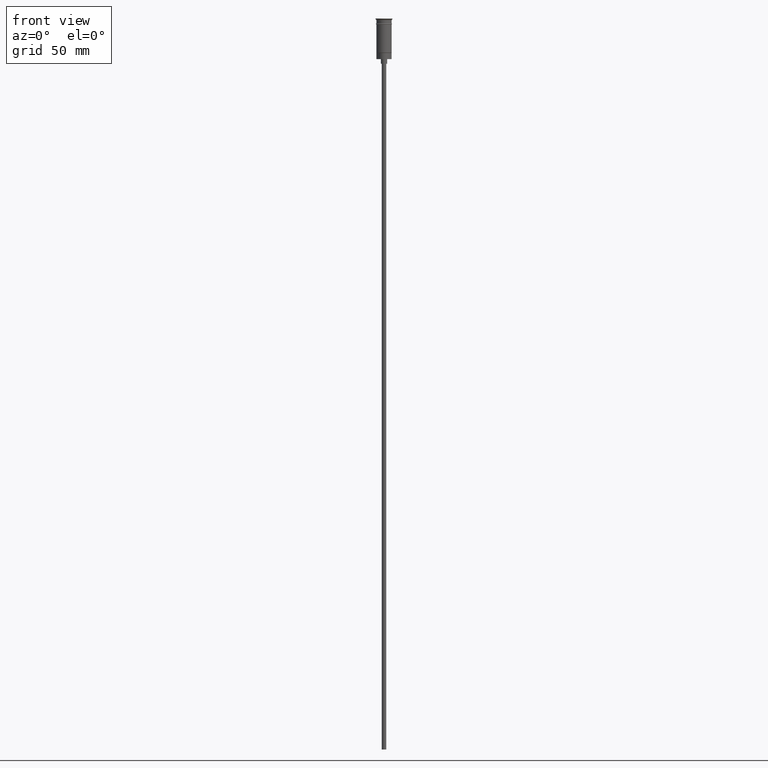
[diagram: clean part render]
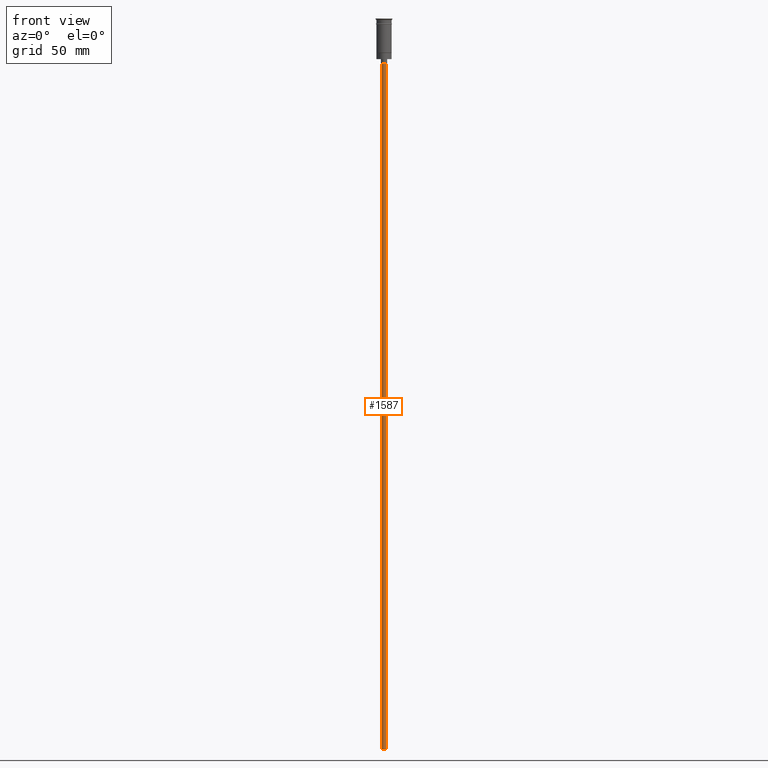
[diagram: same view with one face highlighted and labeled with its STEP entity id]
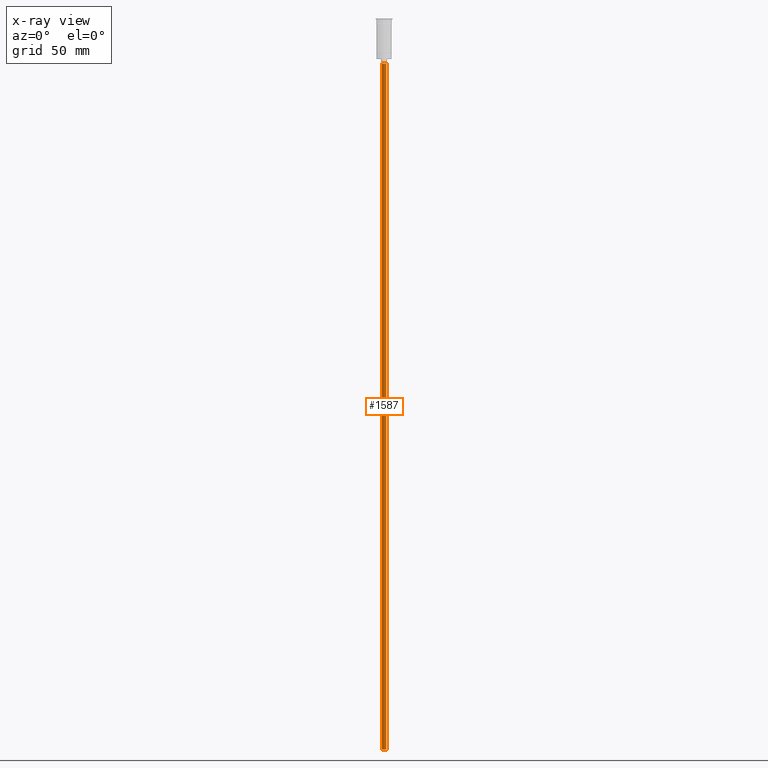
[diagram: x-ray of the same camera — body ghosted, the highlighted face saturated]
A machine part, front view. The second image highlights one B-rep face of the part: STEP entity #1587.
The next image is the same camera in x-ray: the body ghosted, the highlighted face saturated — about 0% of this face is hidden behind the body in this view.
In plain terms, the highlighted cylindrical surface (edge-blend (fillet) strip) has radius 1.5 mm, axis along (-0, -0, 1).
Its self-contained STEP definition (entity closure, byte-faithful):
#46 = CARTESIAN_POINT ( 'NONE',  ( -1.500000000000000222, 1.836970198721030181E-16, -476.5000000000000568 ) ) ;
#80 = CARTESIAN_POINT ( 'NONE',  ( 0.000000000000000000, 0.000000000000000000, -29.50000000000000000 ) ) ;
#89 = DIRECTION ( 'NONE',  ( -1.000000000000000000, 0.000000000000000000, 0.000000000000000000 ) ) ;
#95 = AXIS2_PLACEMENT_3D ( 'NONE', #80, #220, #89 ) ;
#115 = DIRECTION ( 'NONE',  ( -0.000000000000000000, -0.000000000000000000, 1.000000000000000000 ) ) ;
#123 = CARTESIAN_POINT ( 'NONE',  ( 0.000000000000000000, 0.000000000000000000, -476.5000000000000568 ) ) ;
#169 = VECTOR ( 'NONE', #667, 1000.000000000000000 ) ;
#198 = DIRECTION ( 'NONE',  ( -0.000000000000000000, -0.000000000000000000, 1.000000000000000000 ) ) ;
#220 = DIRECTION ( 'NONE',  ( 0.000000000000000000, 0.000000000000000000, -1.000000000000000000 ) ) ;
#358 = VERTEX_POINT ( 'NONE', #664 ) ;
#381 = CARTESIAN_POINT ( 'NONE',  ( 1.500000000000000222, 0.000000000000000000, -476.5000000000000568 ) ) ;
#425 = AXIS2_PLACEMENT_3D ( 'NONE', #123, #115, #756 ) ;
#432 = CARTESIAN_POINT ( 'NONE',  ( 1.500000000000000222, 0.000000000000000000, -476.5000000000000568 ) ) ;
#466 = VERTEX_POINT ( 'NONE', #46 ) ;
#503 = FACE_OUTER_BOUND ( 'NONE', #1079, .T. ) ;
#641 = CARTESIAN_POINT ( 'NONE',  ( 0.000000000000000000, 0.000000000000000000, -476.5000000000000568 ) ) ;
#652 = ORIENTED_EDGE ( 'NONE', *, *, #1370, .T. ) ;
#664 = CARTESIAN_POINT ( 'NONE',  ( -1.500000000000000222, 1.836970198721030181E-16, -29.50000000000000000 ) ) ;
#667 = DIRECTION ( 'NONE',  ( -0.000000000000000000, -0.000000000000000000, 1.000000000000000000 ) ) ;
#696 = VERTEX_POINT ( 'NONE', #740 ) ;
#712 = VERTEX_POINT ( 'NONE', #381 ) ;
#740 = CARTESIAN_POINT ( 'NONE',  ( 1.500000000000000222, 0.000000000000000000, -29.50000000000000000 ) ) ;
#749 = ORIENTED_EDGE ( 'NONE', *, *, #880, .T. ) ;
#756 = DIRECTION ( 'NONE',  ( 1.000000000000000000, 0.000000000000000000, 0.000000000000000000 ) ) ;
#811 = DIRECTION ( 'NONE',  ( -1.000000000000000000, 0.000000000000000000, 0.000000000000000000 ) ) ;
#880 = EDGE_CURVE ( 'NONE', #712, #696, #1537, .T. ) ;
#912 = ORIENTED_EDGE ( 'NONE', *, *, #1251, .F. ) ;
#1042 = VECTOR ( 'NONE', #198, 1000.000000000000000 ) ;
#1079 = EDGE_LOOP ( 'NONE', ( #1263, #912, #749, #652 ) ) ;
#1093 = AXIS2_PLACEMENT_3D ( 'NONE', #641, #1385, #811 ) ;
#1251 = EDGE_CURVE ( 'NONE', #712, #466, #1556, .T. ) ;
#1263 = ORIENTED_EDGE ( 'NONE', *, *, #1336, .F. ) ;
#1264 = LINE ( 'NONE', #1414, #169 ) ;
#1336 = EDGE_CURVE ( 'NONE', #466, #358, #1264, .T. ) ;
#1342 = CYLINDRICAL_SURFACE ( 'NONE', #425, 1.500000000000000222 ) ;
#1370 = EDGE_CURVE ( 'NONE', #696, #358, #1478, .T. ) ;
#1385 = DIRECTION ( 'NONE',  ( 0.000000000000000000, 0.000000000000000000, -1.000000000000000000 ) ) ;
#1414 = CARTESIAN_POINT ( 'NONE',  ( -1.500000000000000222, 1.836970198721030181E-16, -476.5000000000000568 ) ) ;
#1478 = CIRCLE ( 'NONE', #95, 1.500000000000000222 ) ;
#1537 = LINE ( 'NONE', #432, #1042 ) ;
#1556 = CIRCLE ( 'NONE', #1093, 1.500000000000000222 ) ;
#1587 = ADVANCED_FACE ( 'NONE', ( #503 ), #1342, .T. ) ;